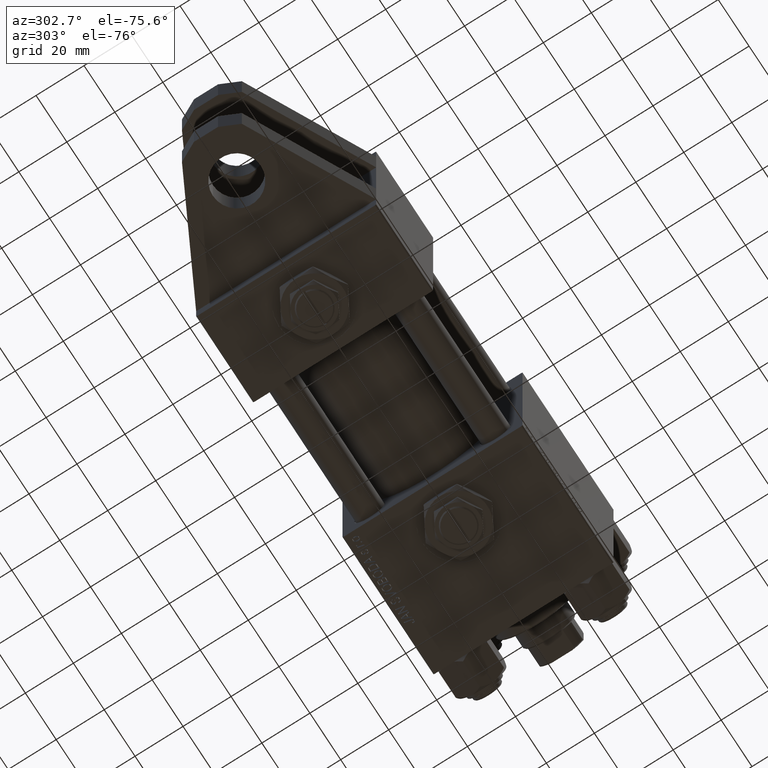
[diagram: clean part render]
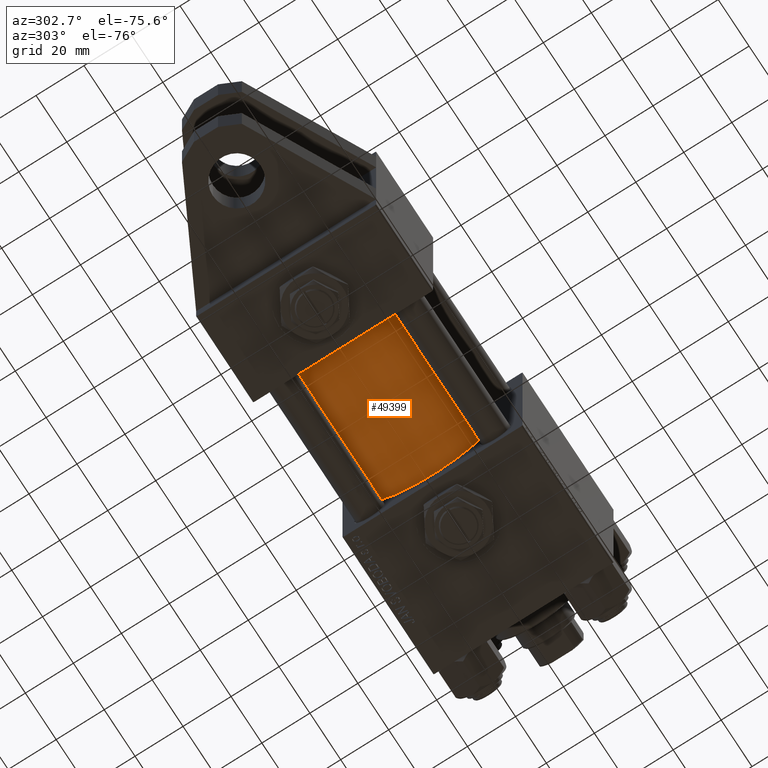
[diagram: same view with one face highlighted and labeled with its STEP entity id]
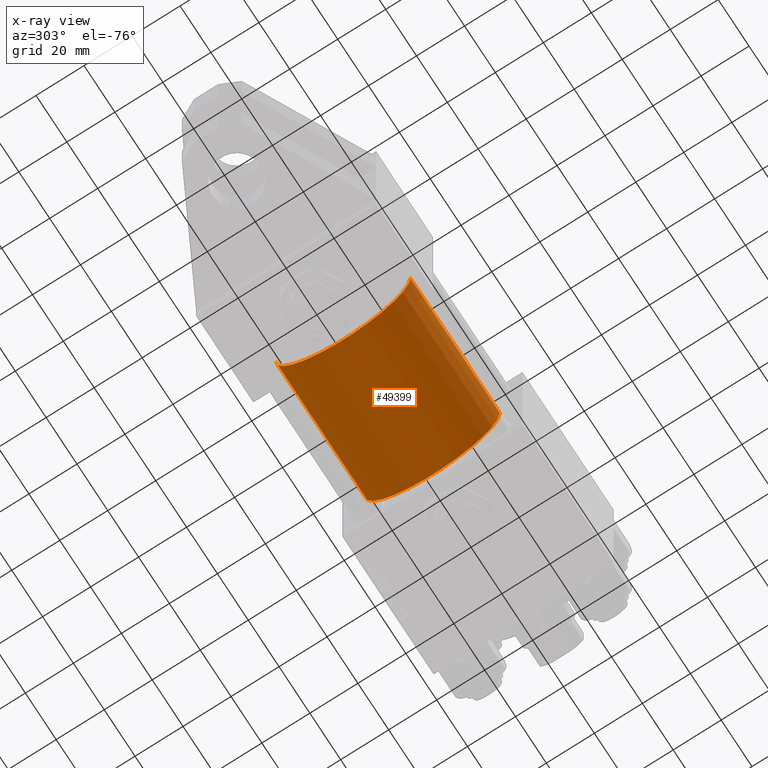
[diagram: x-ray of the same camera — body ghosted, the highlighted face saturated]
A machine part, auxiliary view. The second image highlights one B-rep face of the part: STEP entity #49399.
The next image is the same camera in x-ray: the body ghosted, the highlighted face saturated — about 2% of this face is hidden behind the body in this view.
In plain terms, the highlighted cylindrical surface (partial cylindrical patch) has radius 28 mm, axis along (-1, -0, 0).
Its self-contained STEP definition (entity closure, byte-faithful):
#1385 = DIRECTION ( 'NONE',  ( 0.000000000000000000, 0.000000000000000000, 1.000000000000000000 ) ) ;
#1400 = AXIS2_PLACEMENT_3D ( 'NONE', #24901, #45308, #1385 ) ;
#4342 = DIRECTION ( 'NONE',  ( 0.000000000000000000, 0.000000000000000000, -1.000000000000000000 ) ) ;
#5327 = LINE ( 'NONE', #30388, #26839 ) ;
#7025 = VERTEX_POINT ( 'NONE', #24732 ) ;
#7066 = ORIENTED_EDGE ( 'NONE', *, *, #13249, .F. ) ;
#7412 = CYLINDRICAL_SURFACE ( 'NONE', #33633, 28.00000000000000000 ) ;
#9406 = AXIS2_PLACEMENT_3D ( 'NONE', #11677, #16623, #4342 ) ;
#10821 = DIRECTION ( 'NONE',  ( -1.000000000000000000, -0.000000000000000000, -0.000000000000000000 ) ) ;
#11677 = CARTESIAN_POINT ( 'NONE',  ( 95.00000000000000000, -3.469446951953614189E-15, 0.000000000000000000 ) ) ;
#13249 = EDGE_CURVE ( 'NONE', #26081, #29113, #37745, .T. ) ;
#16623 = DIRECTION ( 'NONE',  ( 1.000000000000000000, 0.000000000000000000, 0.000000000000000000 ) ) ;
#19416 = CARTESIAN_POINT ( 'NONE',  ( 95.00000000000000000, -4.043591434102586818E-17, -28.00000000000000000 ) ) ;
#19426 = DIRECTION ( 'NONE',  ( 0.000000000000000000, 0.000000000000000000, 1.000000000000000000 ) ) ;
#20408 = ORIENTED_EDGE ( 'NONE', *, *, #50551, .F. ) ;
#24732 = CARTESIAN_POINT ( 'NONE',  ( 37.00000000000000000, -4.043591434102586818E-17, -28.00000000000000000 ) ) ;
#24901 = CARTESIAN_POINT ( 'NONE',  ( 37.00000000000000000, -3.469446951953614189E-15, 0.000000000000000000 ) ) ;
#26081 = VERTEX_POINT ( 'NONE', #19416 ) ;
#26763 = FACE_OUTER_BOUND ( 'NONE', #41426, .T. ) ;
#26839 = VECTOR ( 'NONE', #45324, 1000.000000000000000 ) ;
#28117 = CARTESIAN_POINT ( 'NONE',  ( 37.00000000000000000, -3.469446951953614189E-15, 28.00000000000000000 ) ) ;
#28457 = EDGE_CURVE ( 'NONE', #7025, #29898, #45667, .T. ) ;
#29023 = LINE ( 'NONE', #33464, #32028 ) ;
#29113 = VERTEX_POINT ( 'NONE', #33667 ) ;
#29898 = VERTEX_POINT ( 'NONE', #28117 ) ;
#30388 = CARTESIAN_POINT ( 'NONE',  ( 95.00000000000000000, -4.043591434102586818E-17, -28.00000000000000000 ) ) ;
#31459 = ORIENTED_EDGE ( 'NONE', *, *, #28457, .T. ) ;
#32028 = VECTOR ( 'NONE', #33726, 1000.000000000000000 ) ;
#33464 = CARTESIAN_POINT ( 'NONE',  ( 95.00000000000000000, -3.469446951953614189E-15, 28.00000000000000000 ) ) ;
#33633 = AXIS2_PLACEMENT_3D ( 'NONE', #39307, #10821, #19426 ) ;
#33667 = CARTESIAN_POINT ( 'NONE',  ( 95.00000000000000000, -3.469446951953614189E-15, 28.00000000000000000 ) ) ;
#33726 = DIRECTION ( 'NONE',  ( -1.000000000000000000, -0.000000000000000000, -0.000000000000000000 ) ) ;
#37745 = CIRCLE ( 'NONE', #9406, 28.00000000000000000 ) ;
#39307 = CARTESIAN_POINT ( 'NONE',  ( 95.00000000000000000, -3.469446951953614189E-15, 0.000000000000000000 ) ) ;
#40632 = ORIENTED_EDGE ( 'NONE', *, *, #41726, .T. ) ;
#41426 = EDGE_LOOP ( 'NONE', ( #7066, #40632, #31459, #20408 ) ) ;
#41726 = EDGE_CURVE ( 'NONE', #26081, #7025, #5327, .T. ) ;
#45308 = DIRECTION ( 'NONE',  ( 1.000000000000000000, -0.000000000000000000, 0.000000000000000000 ) ) ;
#45324 = DIRECTION ( 'NONE',  ( -1.000000000000000000, -0.000000000000000000, -0.000000000000000000 ) ) ;
#45667 = CIRCLE ( 'NONE', #1400, 28.00000000000000000 ) ;
#49399 = ADVANCED_FACE ( 'NONE', ( #26763 ), #7412, .T. ) ;
#50551 = EDGE_CURVE ( 'NONE', #29113, #29898, #29023, .T. ) ;